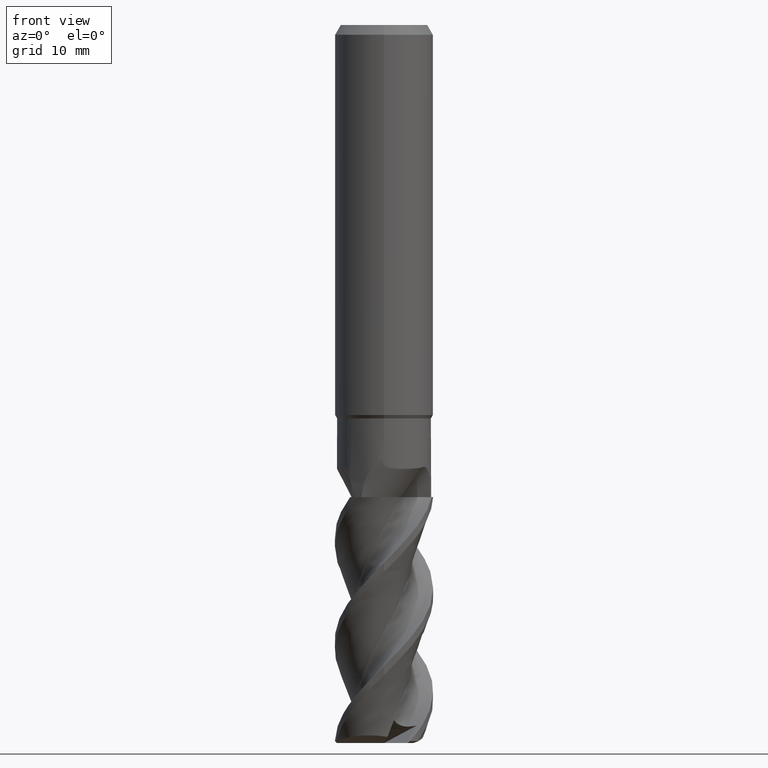
[diagram: clean part render]
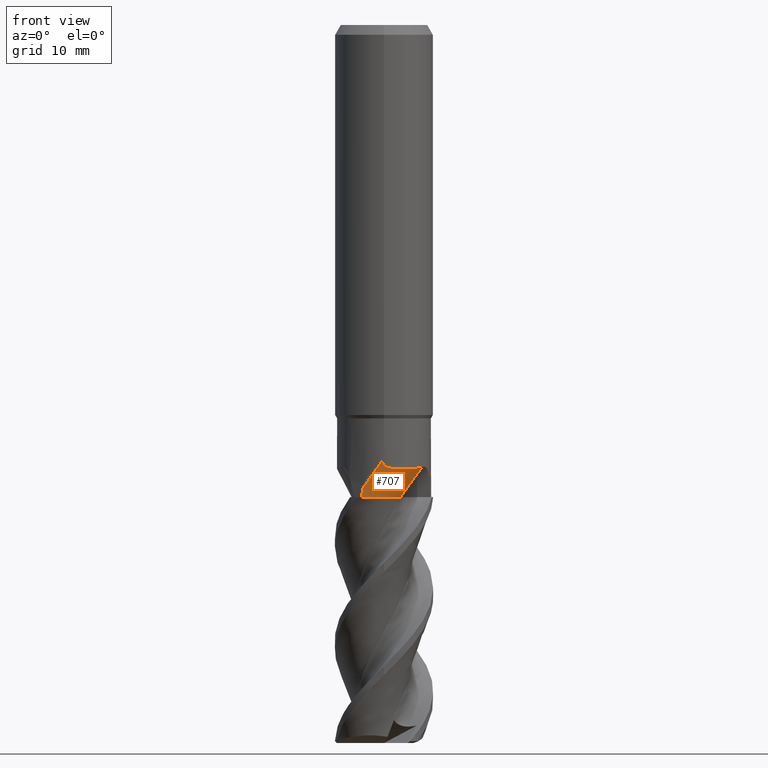
[diagram: same view with one face highlighted and labeled with its STEP entity id]
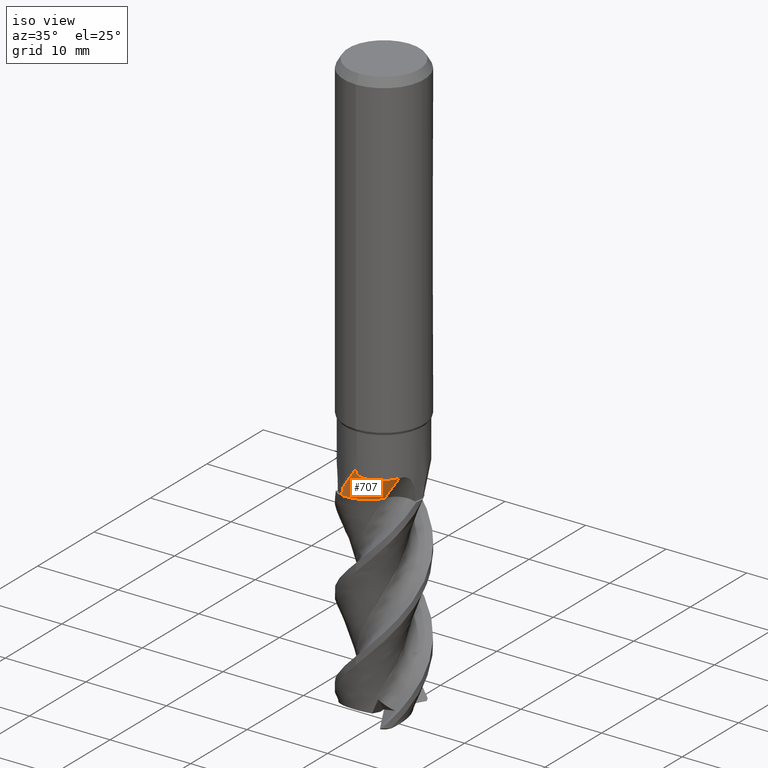
[diagram: same view with one face highlighted and labeled with its STEP entity id]
A machine part, front view. The second image highlights one B-rep face of the part: STEP entity #707.
A second angle (iso view) of the same face is appended — the face is thin or edge-on in the first view.
In plain terms, the highlighted face is a SurfaceOfRevolution surface.
Its self-contained STEP definition (entity closure, byte-faithful):
#479=EDGE_CURVE('',#677,#1081,#1382,.T.);
#543=VERTEX_POINT('',#1452);
#587=VERTEX_POINT('',#1499);
#595=EDGE_CURVE('',#1079,#677,#1508,.T.);
#677=VERTEX_POINT('',#1598);
#705=EDGE_CURVE('',#1355,#543,#1629,.T.);
#707=ADVANCED_FACE('',(#1631),#1632,.F.);
#763=EDGE_CURVE('',#1081,#1355,#1694,.T.);
#793=EDGE_CURVE('',#543,#587,#1725,.T.);
#1079=VERTEX_POINT('',#2034);
#1081=VERTEX_POINT('',#2036);
#1117=EDGE_CURVE('',#1079,#587,#2076,.T.);
#1355=VERTEX_POINT('',#2341);
#1382=B_SPLINE_CURVE_WITH_KNOTS('',3,(#2367,#2368,#2369,#2370),.UNSPECIFIED.,.F.,.F.,(4,4),(0.0,0.988405006257991),.UNSPECIFIED.);
#1452=CARTESIAN_POINT('',(6.11360682163498E-013,-4.79995000000001,-44.7332702528887));
#1499=CARTESIAN_POINT('',(3.87515179227531,-2.83244039466419,-44.9830052611552));
#1508=CIRCLE('',#3083,4.134);
#1598=CARTESIAN_POINT('',(-2.28175424088139,-4.22292760851045,-48.0));
#1629=B_SPLINE_CURVE_WITH_KNOTS('',3,(#4123,#4124,#4125,#4126,#4127,#4128,#4129,#4130,#4131,#4132,#4133,#4134,#4135,#4136,#4137,#4138),.UNSPECIFIED.,.F.,.F.,(4,2,2,2,2,2,2,4),(0.0,0.366408586307442,0.668613674138256,1.01258864591036,1.57150034339764,2.56511215627149,3.45385883269025,4.34847679375894),.UNSPECIFIED.);
#1631=FACE_OUTER_BOUND('',#4140,.T.);
#1632=SURFACE_OF_REVOLUTION('',#4141,#4142);
#1694=CIRCLE('',#4736,86.1581784125976);
#1725=B_SPLINE_CURVE_WITH_KNOTS('',3,(#4800,#4801,#4802,#4803,#4804,#4805,#4806,#4807,#4808,#4809,#4810,#4811,#4812,#4813,#4814,#4815),.UNSPECIFIED.,.F.,.F.,(4,2,2,2,2,2,2,4),(0.0,0.366408586307442,0.668613674138256,1.01258864591036,1.57150034339764,2.56511215627149,3.45385883269025,4.34847679375894),.UNSPECIFIED.);
#2034=CARTESIAN_POINT('',(1.6876827488071,-2.24226533618483,-48.0000000000021));
#2036=CARTESIAN_POINT('',(-2.1599717492804,-4.28649531025178,-47.102655348691));
#2076=CIRCLE('',#7170,84.6072957860531);
#2341=CARTESIAN_POINT('',(-0.18059641830236,-4.79655135865304,-44.2993889745125));
#2367=CARTESIAN_POINT('',(-2.2817542408818,-4.22292760851023,-48.0000000000021));
#2368=CARTESIAN_POINT('',(-2.21764197331526,-4.25756908285558,-47.6786917843483));
#2369=CARTESIAN_POINT('',(-2.16788110208193,-4.28250977489537,-47.3659461192606));
#2370=CARTESIAN_POINT('',(-2.15997175006052,-4.28649530985868,-47.1026553498987));
#3083=AXIS2_PLACEMENT_3D('',#9576,#9577,#9578);
#4123=CARTESIAN_POINT('',(-0.180596417427143,-4.796551358686,-44.2993889733743));
#4124=CARTESIAN_POINT('',(-0.166487601083878,-4.7970825740312,-44.4207063643254));
#4125=CARTESIAN_POINT('',(-0.135940423718768,-4.79826182551681,-44.522908250721));
#4126=CARTESIAN_POINT('',(-0.0488931802611164,-4.7998622849662,-44.6815062372054));
#4127=CARTESIAN_POINT('',(0.00205113472794476,-4.8003577086785,-44.742608583576));
#4128=CARTESIAN_POINT('',(0.135884119656902,-4.79855518475487,-44.8549503869889));
#4129=CARTESIAN_POINT('',(0.218301108180713,-4.79574806940811,-44.9003181884865));
#4130=CARTESIAN_POINT('',(0.442654436711925,-4.78152094163981,-44.9939809232292));
#4131=CARTESIAN_POINT('',(0.607320222646778,-4.76485472978652,-45.0337455650684));
#4132=CARTESIAN_POINT('',(1.10629130302727,-4.68192639043149,-45.1127333541632));
#4133=CARTESIAN_POINT('',(1.5037624486806,-4.58233954212803,-45.1321453635505));
#4134=CARTESIAN_POINT('',(2.31641830864265,-4.22485894597693,-45.1303464071058));
#4135=CARTESIAN_POINT('',(2.67738046049474,-4.00590467327896,-45.1139510887949));
#4136=CARTESIAN_POINT('',(3.33408704876383,-3.47876940655826,-45.0629619964031));
#4137=CARTESIAN_POINT('',(3.62678597768603,-3.17223756510375,-45.0278983496801));
#4138=CARTESIAN_POINT('',(3.8751517922753,-2.83244039466422,-44.9830052611552));
#4140=EDGE_LOOP('',(#9699,#9700,#9701,#9702,#9703,#9704));
#4141=(B_SPLINE_CURVE(3,(#9706,#9707,#9708,#9709,#9710),.UNSPECIFIED.,.F.,.F.)B_SPLINE_CURVE_WITH_KNOTS((4,1,4),(0.302213555400576,0.625669572683053,0.949125589965529),.UNSPECIFIED.)RATIONAL_B_SPLINE_CURVE((1.10462379511624,1.03487459837208,0.96512540162792,1.03487459837208,1.10462379511624))BOUNDED_CURVE()REPRESENTATION_ITEM('')GEOMETRIC_REPRESENTATION_ITEM()CURVE());
#4142=AXIS1_PLACEMENT('',#9717,#9718);
#4736=AXIS2_PLACEMENT_3D('',#9789,#9790,#9791);
#4800=CARTESIAN_POINT('',(-0.180596417427143,-4.796551358686,-44.2993889733743));
#4801=CARTESIAN_POINT('',(-0.166487601083878,-4.7970825740312,-44.4207063643254));
#4802=CARTESIAN_POINT('',(-0.135940423718768,-4.79826182551681,-44.522908250721));
#4803=CARTESIAN_POINT('',(-0.0488931802611164,-4.7998622849662,-44.6815062372054));
#4804=CARTESIAN_POINT('',(0.00205113472794476,-4.8003577086785,-44.742608583576));
#4805=CARTESIAN_POINT('',(0.135884119656902,-4.79855518475487,-44.8549503869889));
#4806=CARTESIAN_POINT('',(0.218301108180713,-4.79574806940811,-44.9003181884865));
#4807=CARTESIAN_POINT('',(0.442654436711925,-4.78152094163981,-44.9939809232292));
#4808=CARTESIAN_POINT('',(0.607320222646778,-4.76485472978652,-45.0337455650684));
#4809=CARTESIAN_POINT('',(1.10629130302727,-4.68192639043149,-45.1127333541632));
#4810=CARTESIAN_POINT('',(1.5037624486806,-4.58233954212803,-45.1321453635505));
#4811=CARTESIAN_POINT('',(2.31641830864265,-4.22485894597693,-45.1303464071058));
#4812=CARTESIAN_POINT('',(2.67738046049474,-4.00590467327896,-45.1139510887949));
#4813=CARTESIAN_POINT('',(3.33408704876383,-3.47876940655826,-45.0629619964031));
#4814=CARTESIAN_POINT('',(3.62678597768603,-3.17223756510375,-45.0278983496801));
#4815=CARTESIAN_POINT('',(3.8751517922753,-2.83244039466422,-44.9830052611552));
#7170=AXIS2_PLACEMENT_3D('',#10188,#10189,#10190);
#9576=CARTESIAN_POINT('',(-1.85461753568282,-0.111053311419937,-48.0000000000021));
#9577=DIRECTION('',(-2.83106871279415E-015,-1.04638520070921E-014,-1.0));
#9578=DIRECTION('',(0.856869928517156,-0.51553266201377,2.96859983457524E-015));
#9699=ORIENTED_EDGE('',*,*,#705,.F.);
#9700=ORIENTED_EDGE('',*,*,#763,.F.);
#9701=ORIENTED_EDGE('',*,*,#479,.F.);
#9702=ORIENTED_EDGE('',*,*,#595,.F.);
#9703=ORIENTED_EDGE('',*,*,#1117,.T.);
#9704=ORIENTED_EDGE('',*,*,#793,.F.);
#9706=CARTESIAN_POINT('',(1.6876827488071,-2.24226533618486,-48.0000000000021));
#9707=CARTESIAN_POINT('',(1.24360101845421,-2.98037624278944,-48.0000000000021));
#9708=CARTESIAN_POINT('',(-0.114149046265507,-4.18783536523124,-48.0000000000021));
#9709=CARTESIAN_POINT('',(-1.92530787732288,-4.33325358725725,-48.0000000000021));
#9710=CARTESIAN_POINT('',(-2.76553924671845,-4.14344436839394,-48.0000000000021));
#9717=CARTESIAN_POINT('',(52.414303329956,-53.352356051743,-92.4180491657664));
#9718=DIRECTION('',(-0.565302707128798,-0.783986520066139,0.256511180394614));
#9789=CARTESIAN_POINT('',(50.1486168963578,-56.4945090968955,-91.3899735981857));
#9790=DIRECTION('',(0.565302707128798,0.783986520066139,-0.256511180394614));
#9791=DIRECTION('',(-0.591594171044901,0.602033180098618,0.536257761571842));
#10188=CARTESIAN_POINT('',(52.414303329956,-53.352356051743,-92.4180491657664));
#10189=DIRECTION('',(0.565302707128798,0.783986520066139,-0.256511180394614));
#10190=DIRECTION('',(-0.591594171044901,0.602033180098618,0.536257761571842));